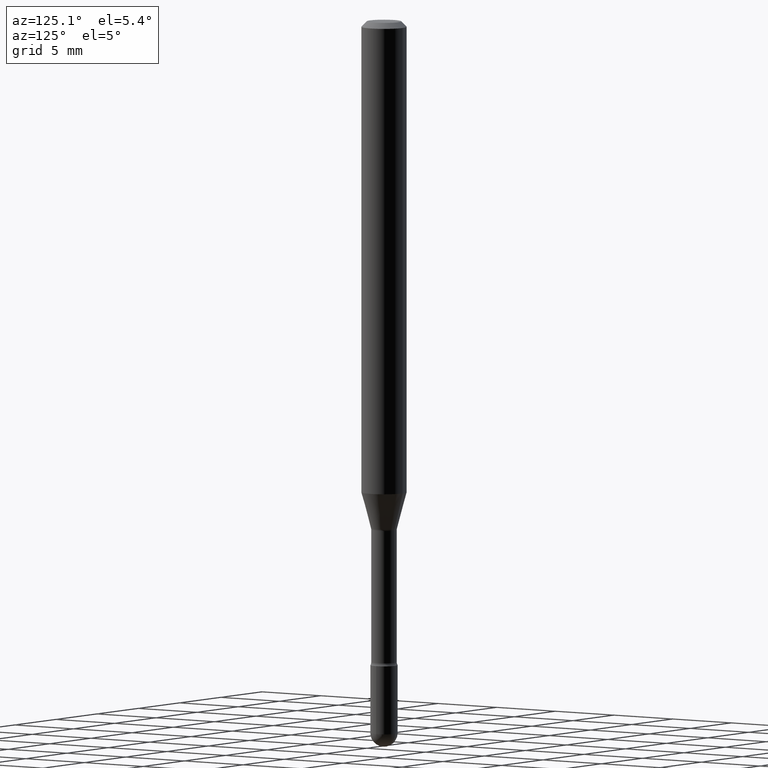
[diagram: clean part render]
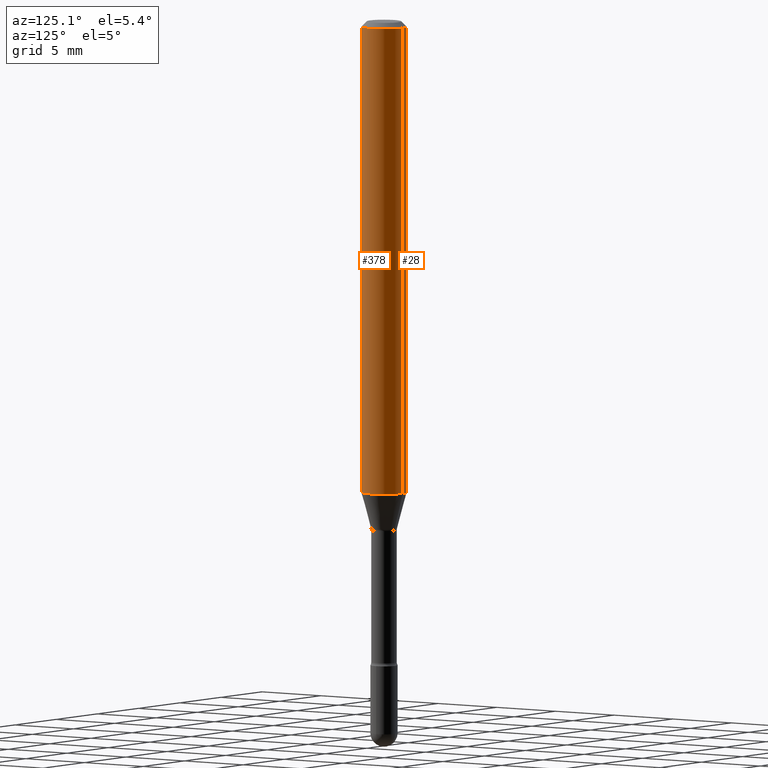
[diagram: same view with one multi-face feature highlighted, each face labeled with its STEP entity id]
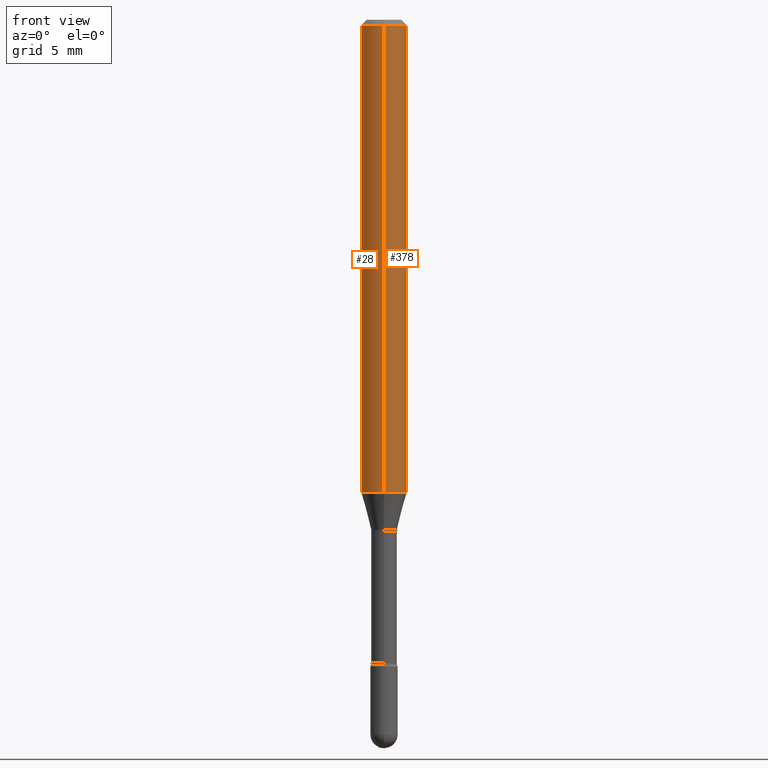
[diagram: same view with one multi-face feature highlighted, each face labeled with its STEP entity id]
A machine part, auxiliary view. The highlighted faces form ONE feature: a constant-radius fillet chain: 2 tangent blend faces with common blend radius 1.5875 mm. The faces share edges in the B-rep.
A second angle (front view) of the same feature is appended — it is thin or edge-on in the first view.
Their STEP definitions:
[1] entity #28 (Cylinder):
#18 = DIRECTION ( 'NONE',  ( -6.982962677686265922E-15, -1.000000000000000000, 4.370956789862821150E-15 ) ) ;
#28 = ADVANCED_FACE ( 'NONE', ( #100 ), #229, .T. ) ;
#30 = VERTEX_POINT ( 'NONE', #38 ) ;
#38 = CARTESIAN_POINT ( 'NONE',  ( 4.440892098500945650E-16, 0.06249999999999995143, -0.01500000000000030129 ) ) ;
#42 = VERTEX_POINT ( 'NONE', #557 ) ;
#60 = EDGE_CURVE ( 'NONE', #42, #333, #161, .T. ) ;
#76 = CARTESIAN_POINT ( 'NONE',  ( 4.440892098500940720E-16, 0.06249999999999543421, -1.298301615493748562 ) ) ;
#84 = VECTOR ( 'NONE', #207, 39.37007874015748143 ) ;
#100 = FACE_OUTER_BOUND ( 'NONE', #479, .T. ) ;
#104 = EDGE_CURVE ( 'NONE', #505, #30, #251, .T. ) ;
#116 = CARTESIAN_POINT ( 'NONE',  ( 3.668197881557972567E-31, -5.237229637862668616E-17, -0.01500000000000008271 ) ) ;
#119 = DIRECTION ( 'NONE',  ( -2.445465254371968142E-29, 3.491486425241759553E-15, 1.000000000000000000 ) ) ;
#130 = ORIENTED_EDGE ( 'NONE', *, *, #60, .T. ) ;
#161 = LINE ( 'NONE', #340, #84 ) ;
#207 = DIRECTION ( 'NONE',  ( -2.445465254371968142E-29, 3.491486425241759553E-15, 1.000000000000000000 ) ) ;
#229 = CYLINDRICAL_SURFACE ( 'NONE', #495, 0.06250000000000000000 ) ;
#242 = DIRECTION ( 'NONE',  ( -2.445465254371968142E-29, 3.491486425241759553E-15, 1.000000000000000000 ) ) ;
#245 = DIRECTION ( 'NONE',  ( -2.445465254371968142E-29, 3.491486425241759553E-15, 1.000000000000000000 ) ) ;
#251 = LINE ( 'NONE', #370, #383 ) ;
#284 = ORIENTED_EDGE ( 'NONE', *, *, #490, .F. ) ;
#305 = DIRECTION ( 'NONE',  ( -2.445465254371968142E-29, 3.491486425241759553E-15, 1.000000000000000000 ) ) ;
#314 = CARTESIAN_POINT ( 'NONE',  ( 3.174951490384956407E-29, -4.533002466365868923E-15, -1.298301615493748340 ) ) ;
#333 = VERTEX_POINT ( 'NONE', #407 ) ;
#340 = CARTESIAN_POINT ( 'NONE',  ( -4.364351673553916201E-16, -0.06250000000000000000, 6.962913004688561093E-16 ) ) ;
#352 = AXIS2_PLACEMENT_3D ( 'NONE', #116, #242, #372 ) ;
#370 = CARTESIAN_POINT ( 'NONE',  ( 4.440892098500625669E-16, 0.06250000000000000000, 2.598554973136360665E-16 ) ) ;
#372 = DIRECTION ( 'NONE',  ( -6.982962677686265922E-15, -1.000000000000000000, 3.483106191921935554E-15 ) ) ;
#379 = ORIENTED_EDGE ( 'NONE', *, *, #104, .F. ) ;
#383 = VECTOR ( 'NONE', #245, 39.37007874015748143 ) ;
#385 = EDGE_CURVE ( 'NONE', #505, #42, #406, .T. ) ;
#406 = CIRCLE ( 'NONE', #462, 0.06250000000000000000 ) ;
#407 = CARTESIAN_POINT ( 'NONE',  ( -4.364351673553912750E-16, -0.06250000000000005551, -0.01499999999999986587 ) ) ;
#418 = CIRCLE ( 'NONE', #352, 0.06250000000000000000 ) ;
#458 = ORIENTED_EDGE ( 'NONE', *, *, #385, .T. ) ;
#462 = AXIS2_PLACEMENT_3D ( 'NONE', #314, #305, #18 ) ;
#467 = DIRECTION ( 'NONE',  ( -6.982962677686265922E-15, -1.000000000000000000, 3.491486425241759948E-15 ) ) ;
#474 = CARTESIAN_POINT ( 'NONE',  ( -1.169113584055446105E-44, 1.669184350826100908E-30, 4.780733988912460139E-16 ) ) ;
#479 = EDGE_LOOP ( 'NONE', ( #379, #458, #130, #284 ) ) ;
#490 = EDGE_CURVE ( 'NONE', #30, #333, #418, .T. ) ;
#495 = AXIS2_PLACEMENT_3D ( 'NONE', #474, #119, #467 ) ;
#505 = VERTEX_POINT ( 'NONE', #76 ) ;
#557 = CARTESIAN_POINT ( 'NONE',  ( -4.364351673553601150E-16, -0.06250000000000456579, -1.298301615493748118 ) ) ;
[2] entity #378 (Cylinder):
#27 = DIRECTION ( 'NONE',  ( -2.445465254371968142E-29, 3.491486425241759553E-15, 1.000000000000000000 ) ) ;
#30 = VERTEX_POINT ( 'NONE', #38 ) ;
#38 = CARTESIAN_POINT ( 'NONE',  ( 4.440892098500945650E-16, 0.06249999999999995143, -0.01500000000000030129 ) ) ;
#42 = VERTEX_POINT ( 'NONE', #557 ) ;
#57 = CIRCLE ( 'NONE', #175, 0.06250000000000000000 ) ;
#60 = EDGE_CURVE ( 'NONE', #42, #333, #161, .T. ) ;
#63 = EDGE_CURVE ( 'NONE', #42, #505, #57, .T. ) ;
#76 = CARTESIAN_POINT ( 'NONE',  ( 4.440892098500940720E-16, 0.06249999999999543421, -1.298301615493748562 ) ) ;
#84 = VECTOR ( 'NONE', #207, 39.37007874015748143 ) ;
#91 = CARTESIAN_POINT ( 'NONE',  ( -1.169113584055446105E-44, 1.669184350826100908E-30, 4.780733988912460139E-16 ) ) ;
#104 = EDGE_CURVE ( 'NONE', #505, #30, #251, .T. ) ;
#141 = DIRECTION ( 'NONE',  ( -6.982962677686265922E-15, -1.000000000000000000, 3.491486425241759948E-15 ) ) ;
#149 = FACE_OUTER_BOUND ( 'NONE', #290, .T. ) ;
#161 = LINE ( 'NONE', #340, #84 ) ;
#163 = AXIS2_PLACEMENT_3D ( 'NONE', #233, #402, #398 ) ;
#175 = AXIS2_PLACEMENT_3D ( 'NONE', #513, #27, #422 ) ;
#188 = CIRCLE ( 'NONE', #163, 0.06250000000000000000 ) ;
#207 = DIRECTION ( 'NONE',  ( -2.445465254371968142E-29, 3.491486425241759553E-15, 1.000000000000000000 ) ) ;
#233 = CARTESIAN_POINT ( 'NONE',  ( 3.668197881557972567E-31, -5.237229637862668616E-17, -0.01500000000000008271 ) ) ;
#245 = DIRECTION ( 'NONE',  ( -2.445465254371968142E-29, 3.491486425241759553E-15, 1.000000000000000000 ) ) ;
#251 = LINE ( 'NONE', #370, #383 ) ;
#290 = EDGE_LOOP ( 'NONE', ( #388, #534, #430, #421 ) ) ;
#311 = AXIS2_PLACEMENT_3D ( 'NONE', #91, #523, #141 ) ;
#333 = VERTEX_POINT ( 'NONE', #407 ) ;
#340 = CARTESIAN_POINT ( 'NONE',  ( -4.364351673553916201E-16, -0.06250000000000000000, 6.962913004688561093E-16 ) ) ;
#370 = CARTESIAN_POINT ( 'NONE',  ( 4.440892098500625669E-16, 0.06250000000000000000, 2.598554973136360665E-16 ) ) ;
#378 = ADVANCED_FACE ( 'NONE', ( #149 ), #532, .T. ) ;
#383 = VECTOR ( 'NONE', #245, 39.37007874015748143 ) ;
#388 = ORIENTED_EDGE ( 'NONE', *, *, #63, .T. ) ;
#389 = EDGE_CURVE ( 'NONE', #333, #30, #188, .T. ) ;
#398 = DIRECTION ( 'NONE',  ( -6.982962677686265922E-15, -1.000000000000000000, 3.483106191921935554E-15 ) ) ;
#402 = DIRECTION ( 'NONE',  ( -2.445465254371968142E-29, 3.491486425241759553E-15, 1.000000000000000000 ) ) ;
#407 = CARTESIAN_POINT ( 'NONE',  ( -4.364351673553912750E-16, -0.06250000000000005551, -0.01499999999999986587 ) ) ;
#421 = ORIENTED_EDGE ( 'NONE', *, *, #60, .F. ) ;
#422 = DIRECTION ( 'NONE',  ( -6.982962677686265922E-15, -1.000000000000000000, 4.370956789862821150E-15 ) ) ;
#430 = ORIENTED_EDGE ( 'NONE', *, *, #389, .F. ) ;
#505 = VERTEX_POINT ( 'NONE', #76 ) ;
#513 = CARTESIAN_POINT ( 'NONE',  ( 3.174951490384956407E-29, -4.533002466365868923E-15, -1.298301615493748340 ) ) ;
#523 = DIRECTION ( 'NONE',  ( -2.445465254371968142E-29, 3.491486425241759553E-15, 1.000000000000000000 ) ) ;
#532 = CYLINDRICAL_SURFACE ( 'NONE', #311, 0.06250000000000000000 ) ;
#534 = ORIENTED_EDGE ( 'NONE', *, *, #104, .T. ) ;
#557 = CARTESIAN_POINT ( 'NONE',  ( -4.364351673553601150E-16, -0.06250000000000456579, -1.298301615493748118 ) ) ;